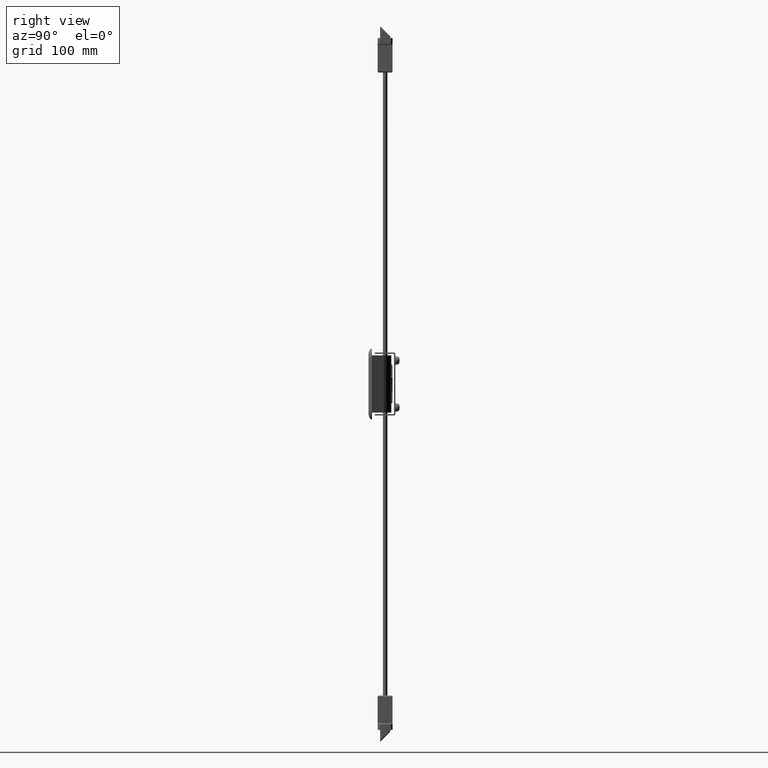
[diagram: clean part render]
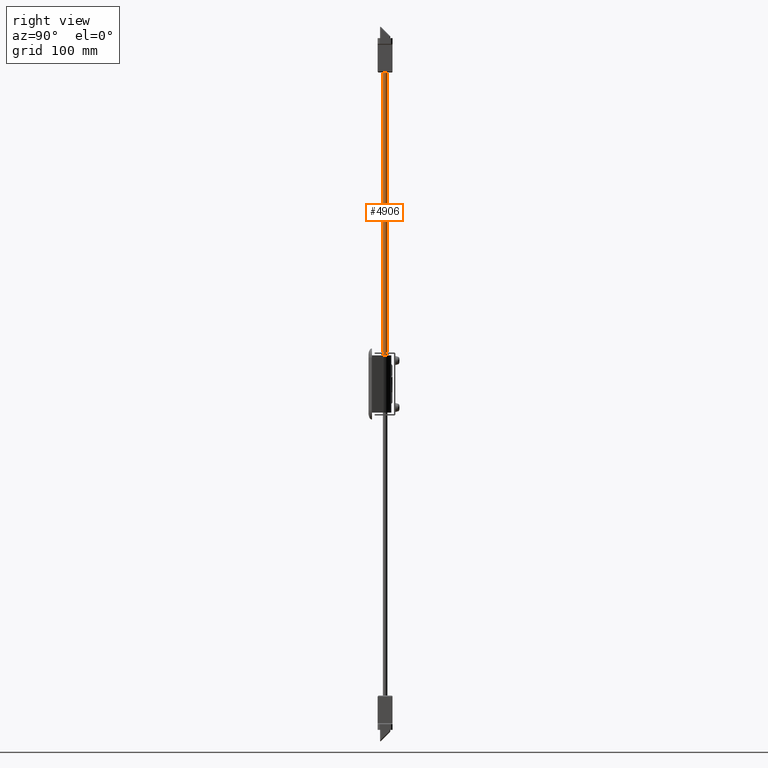
[diagram: same view with one face highlighted and labeled with its STEP entity id]
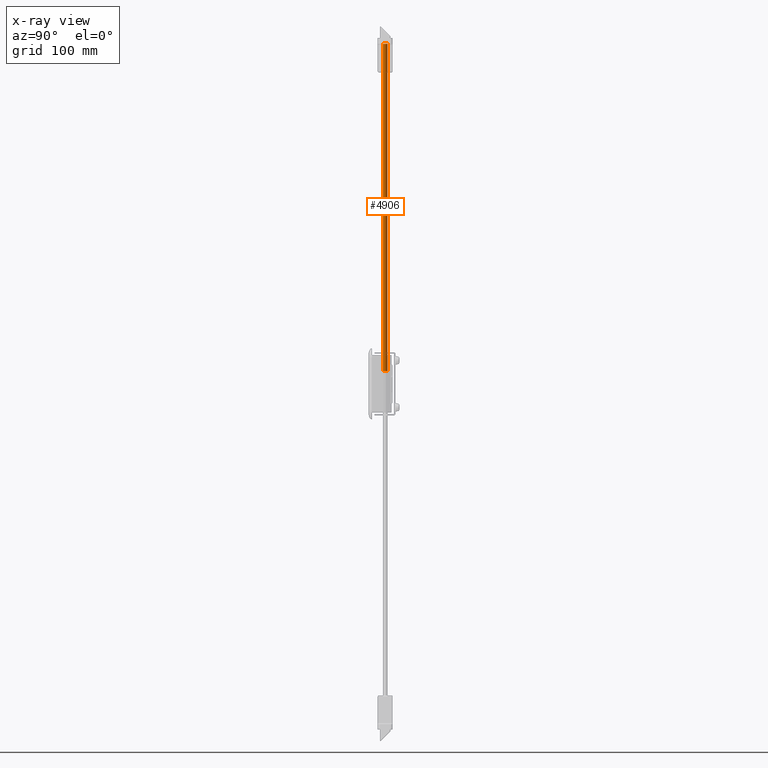
[diagram: x-ray of the same camera — body ghosted, the highlighted face saturated]
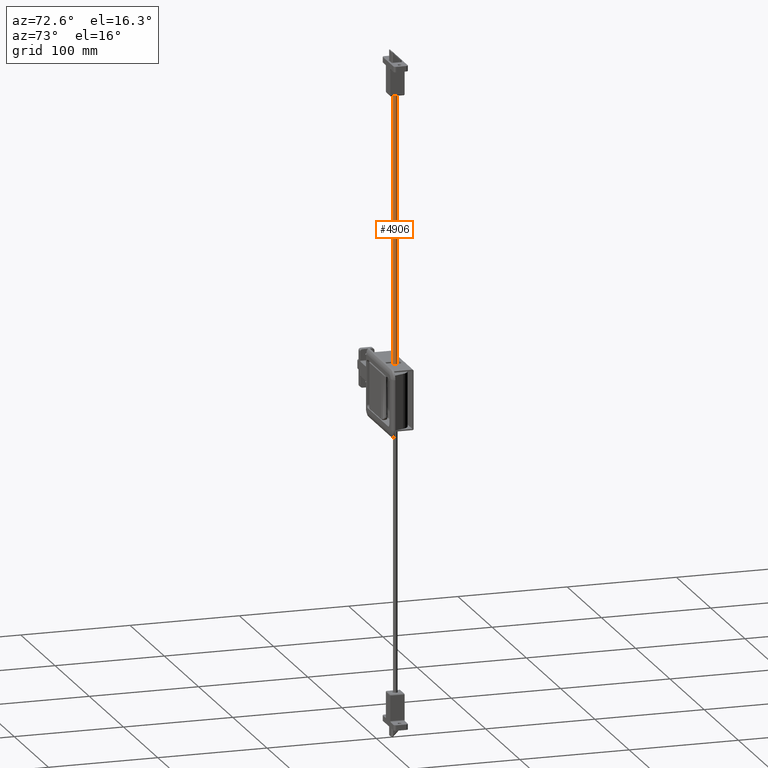
[diagram: same view with one face highlighted and labeled with its STEP entity id]
A machine part, right view. The second image highlights one B-rep face of the part: STEP entity #4906.
The next image is the same camera in x-ray: the body ghosted, the highlighted face saturated — about 0% of this face is hidden behind the body in this view.
A second angle (auxiliary view) of the same face is appended — the face is thin or edge-on in the first view.
In plain terms, the highlighted face is a freeform B-spline surface patch.
Its self-contained STEP definition (entity closure, byte-faithful):
#4782=CARTESIAN_POINT('',(27.472888714119076,6.958515923235950,3.849999999999993));
#4783=CARTESIAN_POINT('',(27.509850433536975,6.914810654325420,3.849999999999993));
#4784=CARTESIAN_POINT('',(27.549251257975421,6.873290848612492,3.849999999999993));
#4785=CARTESIAN_POINT('',(28.925960409362940,5.422542106587917,3.849999999999993));
#4786=CARTESIAN_POINT('',(30.376709151387509,6.799251257975425,3.849999999999993));
#4787=CARTESIAN_POINT('',(31.827457893412078,8.175960409362933,3.849999999999993));
#4788=CARTESIAN_POINT('',(30.450748742024579,9.626709151387507,3.849999999999993));
#4789=CARTESIAN_POINT('',(29.074039590637071,11.077457893412083,3.849999999999993));
#4790=CARTESIAN_POINT('',(27.623290848612491,9.700748742024574,3.849999999999993));
#4791=CARTESIAN_POINT('',(27.472888714119076,6.958515923235950,304.328750000000070));
#4792=CARTESIAN_POINT('',(27.509850433536975,6.914810654325420,304.328750000000010));
#4793=CARTESIAN_POINT('',(27.549251257975421,6.873290848612492,304.328750000000010));
#4794=CARTESIAN_POINT('',(28.925960409362940,5.422542106587917,304.328749999999960));
#4795=CARTESIAN_POINT('',(30.376709151387509,6.799251257975425,304.328750000000010));
#4796=CARTESIAN_POINT('',(31.827457893412078,8.175960409362933,304.328749999999960));
#4797=CARTESIAN_POINT('',(30.450748742024579,9.626709151387507,304.328750000000010));
#4798=CARTESIAN_POINT('',(29.074039590637071,11.077457893412083,304.328749999999960));
#4799=CARTESIAN_POINT('',(27.623290848612491,9.700748742024574,304.328750000000010));
#4807=(BOUNDED_SURFACE()B_SPLINE_SURFACE(2,1,((#4782,#4791),(#4783,#4792),(#4784,#4793),(#4785,#4794),(#4786,#4795),(#4787,#4796),(#4788,#4797),(#4789,#4798),(#4790,#4799)),.UNSPECIFIED.,.F.,.F.,.U.)B_SPLINE_SURFACE_WITH_KNOTS((3,2,2,2,3),(2,2),(0.0,0.132548339959391,3.446256838944157,6.759965337928922,10.073673836913690),(0.0,300.478750000000100),.UNSPECIFIED.)GEOMETRIC_REPRESENTATION_ITEM()RATIONAL_B_SPLINE_SURFACE(((0.977505800795127,0.977505800795127),(0.988284271247462,0.988284271247462),(1.0,1.0),(0.707106781186548,0.707106781186548),(1.0,1.0),(0.707106781186548,0.707106781186548),(1.0,1.0),(0.707106781186548,0.707106781186548),(1.0,1.0)))REPRESENTATION_ITEM('')SURFACE());
#4808=CARTESIAN_POINT('',(27.472888594426170,6.958515822011205,297.0));
#4809=VERTEX_POINT('',#4808);
#4810=CARTESIAN_POINT('',(28.999999364145250,6.250000000000101,297.0));
#4811=VERTEX_POINT('',#4810);
#4812=CARTESIAN_POINT('',(27.472888594426170,6.958515822011205,297.0));
#4813=CARTESIAN_POINT('',(27.682817169113559,6.709175007874692,297.000000000000510));
#4814=CARTESIAN_POINT('',(28.167507224386799,6.361652997915390,296.999999999999600));
#4815=CARTESIAN_POINT('',(28.746550299929190,6.249741007905684,297.000000000000230));
#4816=CARTESIAN_POINT('',(28.999999364145250,6.250000000000101,297.0));
#4817=B_SPLINE_CURVE_WITH_KNOTS('',3,(#4812,#4813,#4814,#4815,#4816),.UNSPECIFIED.,.F.,.U.,(4,1,4),(0.000000942405946,0.977436796245513,1.737815882343647),.UNSPECIFIED.);
#4818=EDGE_CURVE('',#4809,#4811,#4817,.T.);
#4819=ORIENTED_EDGE('',*,*,#4818,.F.);
#4820=CARTESIAN_POINT('',(27.472888594426170,6.958515822011205,10.999999999999989));
#4821=VERTEX_POINT('',#4820);
#4822=CARTESIAN_POINT('',(27.472888594426170,6.958515822011205,10.999999999999989));
#4823=CARTESIAN_POINT('',(27.472888594426170,6.958515822011205,297.0));
#4824=QUASI_UNIFORM_CURVE('',1,(#4822,#4823),.UNSPECIFIED.,.F.,.U.);
#4825=EDGE_CURVE('',#4821,#4809,#4824,.T.);
#4826=ORIENTED_EDGE('',*,*,#4825,.F.);
#4827=CARTESIAN_POINT('',(28.999999364145250,6.250000000000101,11.0));
#4828=VERTEX_POINT('',#4827);
#4829=CARTESIAN_POINT('',(27.472888594426170,6.958515822011205,10.999999999999989));
#4830=CARTESIAN_POINT('',(27.636403421750749,6.764879896127450,10.999999999999989));
#4831=CARTESIAN_POINT('',(28.095639676920051,6.394872129784554,11.000000000000011));
#4832=CARTESIAN_POINT('',(28.674087194777950,6.249317509343376,11.0));
#4833=CARTESIAN_POINT('',(28.999999364145250,6.250000000000101,11.0));
#4834=B_SPLINE_CURVE_WITH_KNOTS('',3,(#4829,#4830,#4831,#4832,#4833),.UNSPECIFIED.,.F.,.U.,(4,1,4),(0.000000942405946,0.760380028584163,1.737815882343647),.UNSPECIFIED.);
#4835=EDGE_CURVE('',#4821,#4828,#4834,.T.);
#4836=ORIENTED_EDGE('',*,*,#4835,.T.);
#4837=CARTESIAN_POINT('',(31.0,8.250000000000000,11.0));
#4838=VERTEX_POINT('',#4837);
#4839=CARTESIAN_POINT('',(28.999999364145250,6.250000000000101,11.0));
#4840=CARTESIAN_POINT('',(29.360150408441260,6.249105836917466,10.999999999999989));
#4841=CARTESIAN_POINT('',(30.079350580769951,6.449475891774197,11.000000000000020));
#4842=CARTESIAN_POINT('',(30.828079778021280,7.235616276129144,10.999999999999959));
#4843=CARTESIAN_POINT('',(31.000485193442390,7.922732875451940,11.000000000000041));
#4844=CARTESIAN_POINT('',(31.0,8.250000000000000,11.0));
#4845=B_SPLINE_CURVE_WITH_KNOTS('',3,(#4839,#4840,#4841,#4842,#4843,#4844),.UNSPECIFIED.,.F.,.U.,(4,1,1,4),(0.000002720879344,1.080127641058537,2.160036060612860,3.141908125883851),.UNSPECIFIED.);
#4846=EDGE_CURVE('',#4828,#4838,#4845,.T.);
#4847=ORIENTED_EDGE('',*,*,#4846,.T.);
#4848=CARTESIAN_POINT('',(29.000000635854750,10.249999999999901,11.0));
#4849=VERTEX_POINT('',#4848);
#4850=CARTESIAN_POINT('',(31.0,8.250000000000000,11.0));
#4851=CARTESIAN_POINT('',(31.001807691385750,8.675959719895868,11.0));
#4852=CARTESIAN_POINT('',(30.772287314878788,9.360531990027134,11.0));
#4853=CARTESIAN_POINT('',(29.980822272030242,10.077361107001050,11.0));
#4854=CARTESIAN_POINT('',(29.360195738204919,10.251027427421940,11.000000000000020));
#4855=CARTESIAN_POINT('',(29.000000635854750,10.249999999999901,11.0));
#4856=B_SPLINE_CURVE_WITH_KNOTS('',3,(#4850,#4851,#4852,#4853,#4854,#4855),.UNSPECIFIED.,.F.,.U.,(4,1,1,4),(0.000002724221595,1.276450148945566,2.061782734020913,3.141907409057390),.UNSPECIFIED.);
#4857=EDGE_CURVE('',#4838,#4849,#4856,.T.);
#4858=ORIENTED_EDGE('',*,*,#4857,.T.);
#4859=CARTESIAN_POINT('',(27.623290143555959,9.700747854103232,11.000000000000011));
#4860=VERTEX_POINT('',#4859);
#4861=CARTESIAN_POINT('',(29.000000635854750,10.249999999999901,11.0));
#4862=CARTESIAN_POINT('',(28.492986945665411,10.252537420921060,11.000000000000020));
#4863=CARTESIAN_POINT('',(27.989631909255170,10.050835920418530,11.000000000000011));
#4864=CARTESIAN_POINT('',(27.623290143555959,9.700747854103232,11.000000000000011));
#4865=B_SPLINE_CURVE_WITH_KNOTS('',3,(#4861,#4862,#4863,#4864),.UNSPECIFIED.,.F.,.U.,(4,4),(0.000000481332168,1.518580467098642),.UNSPECIFIED.);
#4866=EDGE_CURVE('',#4849,#4860,#4865,.T.);
#4867=ORIENTED_EDGE('',*,*,#4866,.T.);
#4868=CARTESIAN_POINT('',(27.623290133390871,9.700747844456894,296.999999999999720));
#4869=VERTEX_POINT('',#4868);
#4870=CARTESIAN_POINT('',(27.623290143555959,9.700747854103232,11.000000000000011));
#4871=CARTESIAN_POINT('',(27.623290133390871,9.700747844456894,296.999999999999720));
#4872=QUASI_UNIFORM_CURVE('',1,(#4870,#4871),.UNSPECIFIED.,.F.,.U.);
#4873=EDGE_CURVE('',#4860,#4869,#4872,.T.);
#4874=ORIENTED_EDGE('',*,*,#4873,.T.);
#4875=CARTESIAN_POINT('',(29.000000635854750,10.249999999999901,297.0));
#4876=VERTEX_POINT('',#4875);
#4877=CARTESIAN_POINT('',(29.000000635854750,10.249999999999901,297.0));
#4878=CARTESIAN_POINT('',(28.492983260598969,10.252526150887389,297.000000000000230));
#4879=CARTESIAN_POINT('',(27.989638251023081,10.050834313830171,296.999999999999890));
#4880=CARTESIAN_POINT('',(27.623290133390871,9.700747844456894,296.999999999999720));
#4881=B_SPLINE_CURVE_WITH_KNOTS('',3,(#4877,#4878,#4879,#4880),.UNSPECIFIED.,.F.,.U.,(4,4),(0.000000481332086,1.518580481116178),.UNSPECIFIED.);
#4882=EDGE_CURVE('',#4876,#4869,#4881,.T.);
#4883=ORIENTED_EDGE('',*,*,#4882,.F.);
#4884=CARTESIAN_POINT('',(31.0,8.250000000000000,297.0));
#4885=VERTEX_POINT('',#4884);
#4886=CARTESIAN_POINT('',(31.0,8.250000000000000,297.0));
#4887=CARTESIAN_POINT('',(31.001808082395218,8.675959617699540,297.0));
#4888=CARTESIAN_POINT('',(30.772286292151868,9.360532241208368,297.000000000000230));
#4889=CARTESIAN_POINT('',(29.980823825057609,10.077360776360100,296.999999999999720));
#4890=CARTESIAN_POINT('',(29.360193837417590,10.251027512199050,297.000000000000230));
#4891=CARTESIAN_POINT('',(29.000000635854750,10.249999999999901,297.0));
#4892=B_SPLINE_CURVE_WITH_KNOTS('',3,(#4886,#4887,#4888,#4889,#4890,#4891),.UNSPECIFIED.,.F.,.U.,(4,1,1,4),(0.000002724221595,1.276450148945566,2.061782734020913,3.141907409057390),.UNSPECIFIED.);
#4893=EDGE_CURVE('',#4885,#4876,#4892,.T.);
#4894=ORIENTED_EDGE('',*,*,#4893,.F.);
#4895=CARTESIAN_POINT('',(28.999999364145250,6.250000000000101,297.0));
#4896=CARTESIAN_POINT('',(29.360150408441250,6.249105836917467,296.999999999999770));
#4897=CARTESIAN_POINT('',(30.079350580769951,6.449475891774197,297.000000000000510));
#4898=CARTESIAN_POINT('',(30.828079778021291,7.235616276129139,296.999999999999200));
#4899=CARTESIAN_POINT('',(31.000485193442390,7.922732875451941,297.000000000001080));
#4900=CARTESIAN_POINT('',(31.0,8.250000000000000,297.0));
#4901=B_SPLINE_CURVE_WITH_KNOTS('',3,(#4895,#4896,#4897,#4898,#4899,#4900),.UNSPECIFIED.,.F.,.U.,(4,1,1,4),(0.000002720879344,1.080127641058537,2.160036060612860,3.141908125883851),.UNSPECIFIED.);
#4902=EDGE_CURVE('',#4811,#4885,#4901,.T.);
#4903=ORIENTED_EDGE('',*,*,#4902,.F.);
#4904=EDGE_LOOP('',(#4819,#4826,#4836,#4847,#4858,#4867,#4874,#4883,#4894,#4903));
#4905=FACE_OUTER_BOUND('',#4904,.T.);
#4906=ADVANCED_FACE('',(#4905),#4807,.T.);